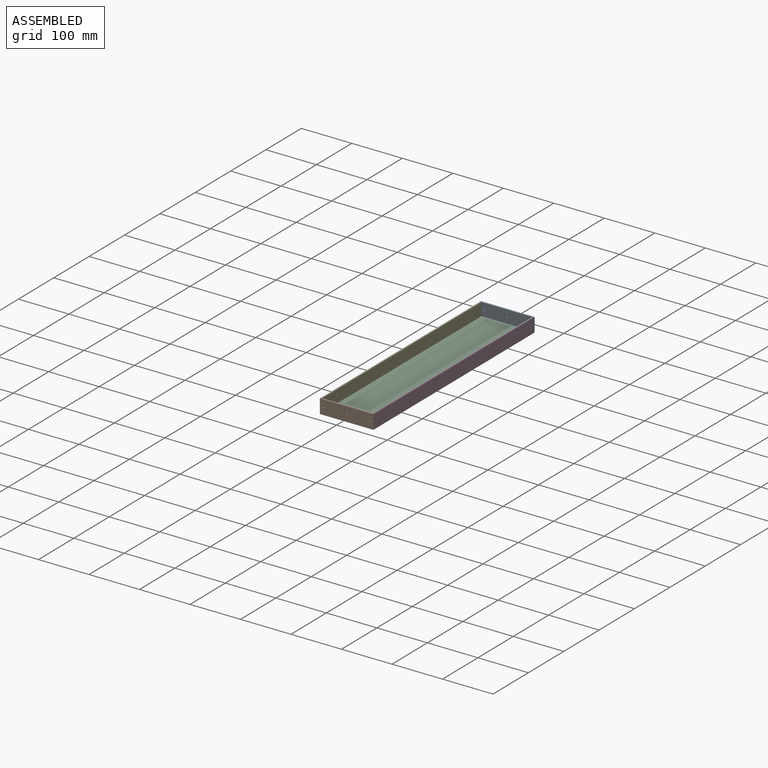
[diagram: assembled view]
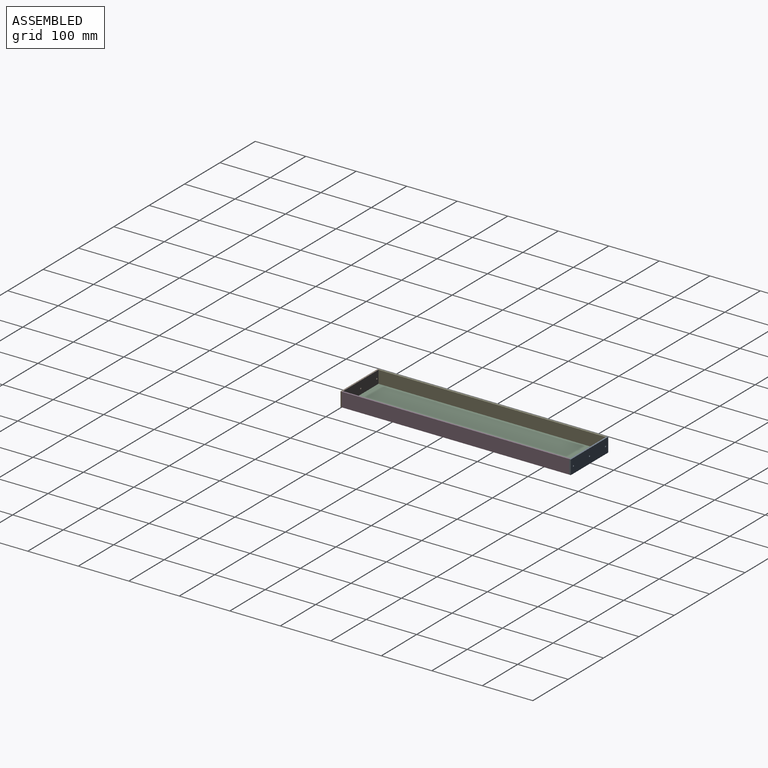
[diagram: assembled view, second angle]
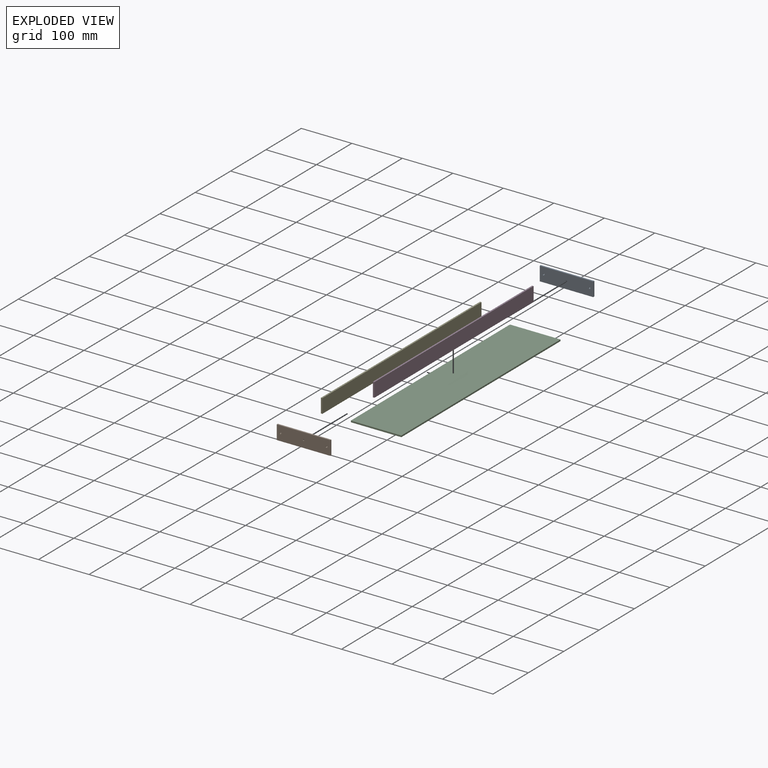
[diagram: exploded view]
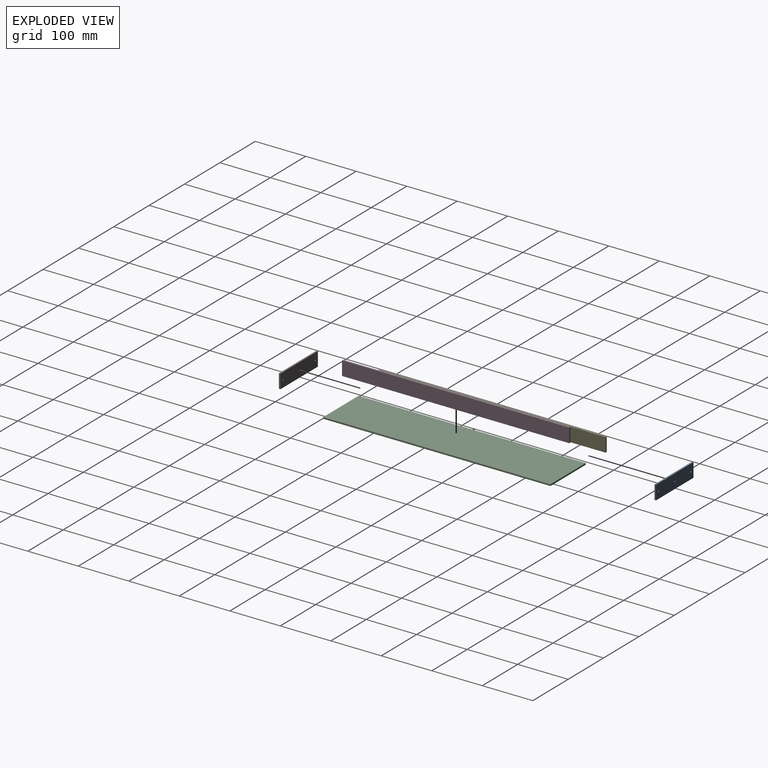
[diagram: exploded view, second angle]
ASSEMBLY  parts=5 mates=12
PART A: 9 faces, bbox 106x3x28 mm
  f0: plane 28x3mm, normal (-1,0,0), area 84mm2, adj f1,f5,f7,f8
  f1: plane 106x3mm, normal (0,0,-1), area 318mm2, adj f0,f2,f7,f8
  f2: plane 28x3mm, normal (1,0,0), area 84mm2, adj f1,f5,f7,f8
  f3: cylinder r=1.5mm len=3mm, axis (0,1,0), area 28.3mm2, adj f7,f8
  f4: cylinder r=1.5mm len=3mm, axis (0,1,0), area 28.3mm2, adj f7,f8
  f5: plane 106x3mm, normal (0,0,1), area 318mm2, adj f0,f2,f7,f8
  f6: cylinder r=1.5mm len=3mm, axis (0,1,0), area 28.3mm2, adj f7,f8
  f7: plane 106x28mm, normal (0,-1,0), area 2946.8mm2, adj f0,f1,f2,f3,f4,f5,f6
  f8: plane 106x28mm, normal (0,1,0), area 2946.8mm2, adj f0,f1,f2,f3,f4,f5,f6
PART B: same geometry as A
PART C: 6 faces, bbox 450x100x3 mm
  f0: plane 100x3mm, normal (-1,0,0), area 300mm2, adj f1,f3,f4,f5
  f1: plane 450x3mm, normal (0,-1,0), area 1350mm2, adj f0,f2,f4,f5
  f2: plane 100x3mm, normal (1,0,0), area 300mm2, adj f1,f3,f4,f5
  f3: plane 450x3mm, normal (0,1,0), area 1350mm2, adj f0,f2,f4,f5
  f4: plane 450x100mm, normal (0,0,1), area 45000mm2, adj f0,f1,f2,f3
  f5: plane 450x100mm, normal (0,0,-1), area 45000mm2, adj f0,f1,f2,f3
PART D: 6 faces, bbox 3x450x28 mm
  f0: plane 28x3mm, normal (0,-1,0), area 84mm2, adj f1,f3,f4,f5
  f1: plane 450x3mm, normal (0,0,-1), area 1350mm2, adj f0,f2,f4,f5
  f2: plane 28x3mm, normal (0,1,0), area 84mm2, adj f1,f3,f4,f5
  f3: plane 450x3mm, normal (0,0,1), area 1350mm2, adj f0,f2,f4,f5
  f4: plane 450x28mm, normal (1,0,0), area 12600mm2, adj f0,f1,f2,f3
  f5: plane 450x28mm, normal (-1,0,0), area 12600mm2, adj f0,f1,f2,f3
PART E: same geometry as D
PLACE A t=(162.18,362.83,64.05)mm
PLACE B t=(162.18,-90.17,64.05)mm
PLACE C rot(axis=(0,0,-1),90deg) t=(165.18,359.83,64.05)mm
PLACE D t=(265.18,-42.99,64.05)mm
PLACE E t=(162.18,-42.99,64.05)mm
MATE planar C.f2 <-> B.f4  axis (0,-1,0) through (215.18,-90.17,65.55)mm
MATE planar B.f1 <-> C.f5  axis (0,0,-1) through (215.18,-91.67,64.05)mm
MATE planar D.f1 <-> C.f5  axis (0,0,-1) through (266.68,134.83,64.05)mm
MATE planar C.f5 <-> A.f1  axis (0,0,-1) through (215.18,134.83,64.05)mm
MATE planar D.f0 <-> C.f2  axis (0,-1,0) through (266.68,-90.17,78.05)mm
MATE planar D.f5 <-> C.f3  axis (-1,0,0) through (265.18,134.83,78.05)mm
MATE planar C.f2 <-> E.f0  axis (0,-1,0) through (215.18,-90.17,65.55)mm
MATE planar B.f0 <-> E.f5  axis (-1,0,0) through (162.18,-91.67,78.05)mm
MATE planar C.f5 <-> E.f1  axis (0,0,-1) through (215.18,134.83,64.05)mm
MATE planar C.f1 <-> E.f4  axis (-1,0,0) through (165.18,134.83,65.55)mm
MATE planar C.f0 <-> A.f7  axis (0,1,0) through (215.18,359.83,65.55)mm
MATE planar E.f5 <-> A.f0  axis (-1,0,0) through (162.18,134.83,78.05)mm
